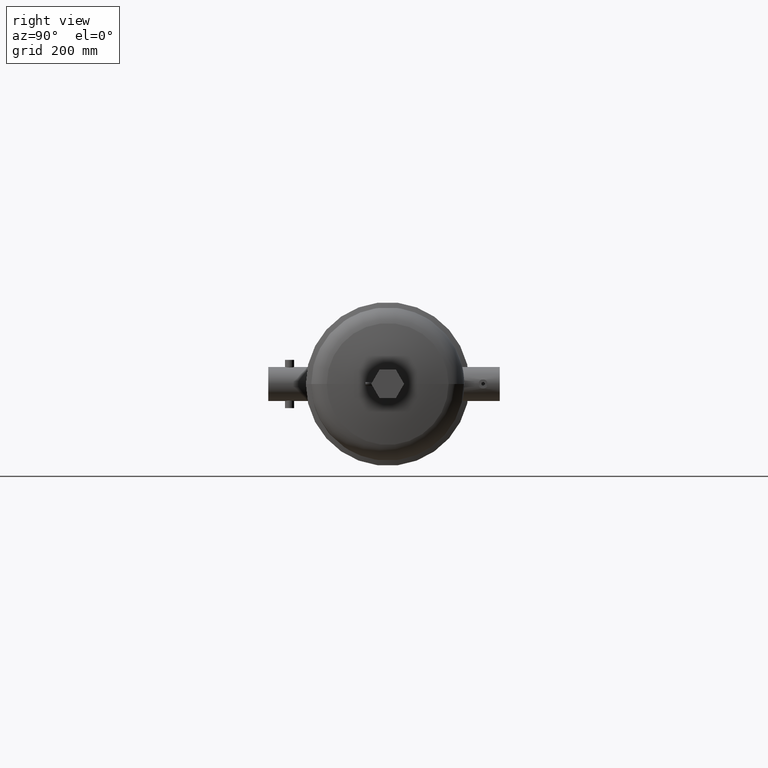
[diagram: clean part render]
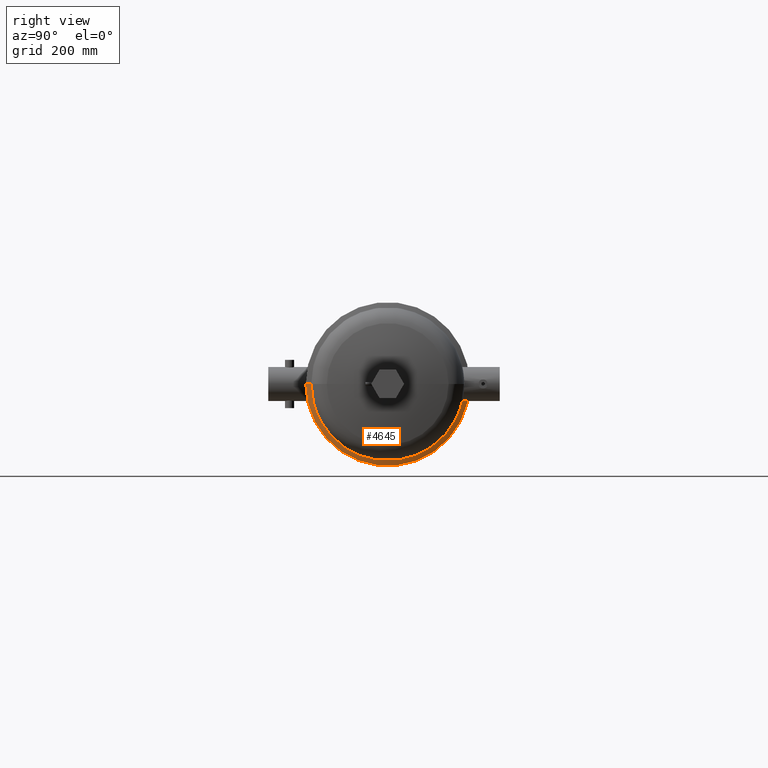
[diagram: same view with one face highlighted and labeled with its STEP entity id]
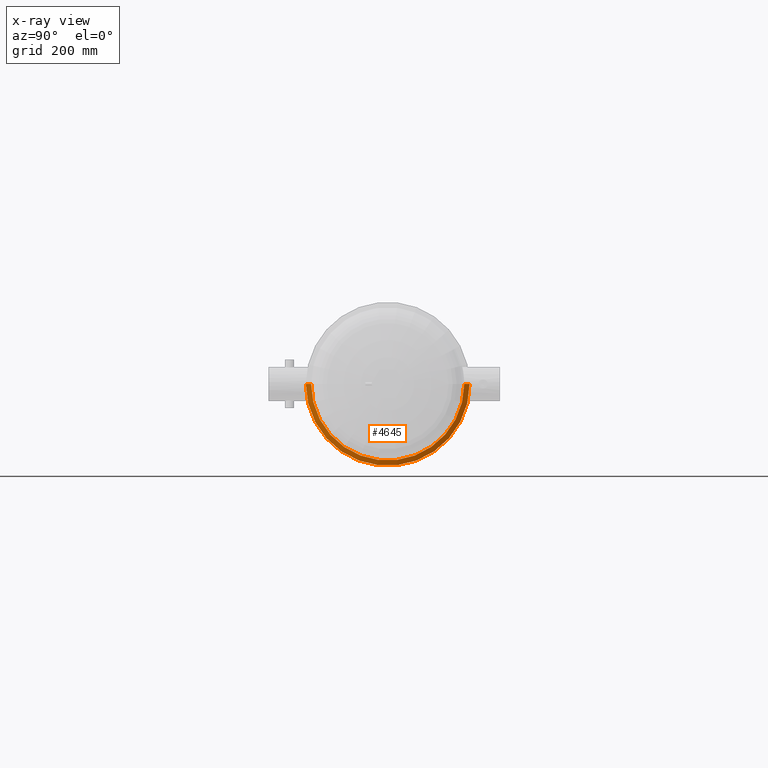
[diagram: x-ray of the same camera — body ghosted, the highlighted face saturated]
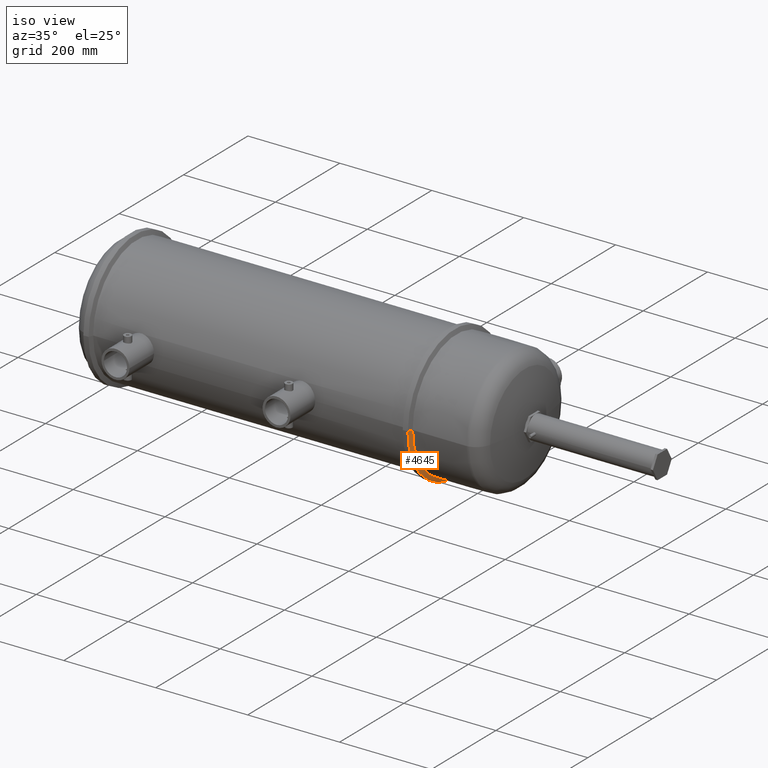
[diagram: same view with one face highlighted and labeled with its STEP entity id]
A machine part, right view. The second image highlights one B-rep face of the part: STEP entity #4645.
The next image is the same camera in x-ray: the body ghosted, the highlighted face saturated — about 0% of this face is hidden behind the body in this view.
A second angle (iso view) of the same face is appended — the face is thin or edge-on in the first view.
In plain terms, the highlighted conical surface has half-angle 70 deg.
Its self-contained STEP definition (entity closure, byte-faithful):
#64 = CARTESIAN_POINT ( 'NONE',  ( 29.68681614497546000, 0.003374638380548246200, 0.0000000000000000000 ) ) ;
#321 = CIRCLE ( 'NONE', #1969, 5.371620222854362600 ) ;
#485 = AXIS2_PLACEMENT_3D ( 'NONE', #5160, #4735, #3802 ) ;
#708 = VECTOR ( 'NONE', #3212, 39.37007874015748100 ) ;
#1075 = VECTOR ( 'NONE', #3594, 39.37007874015748100 ) ;
#1154 = CARTESIAN_POINT ( 'NONE',  ( 29.55032594122995300, 0.003374638380548246200, 0.0000000000000000000 ) ) ;
#1191 = ORIENTED_EDGE ( 'NONE', *, *, #5335, .F. ) ;
#1454 = VERTEX_POINT ( 'NONE', #4316 ) ;
#1674 = EDGE_LOOP ( 'NONE', ( #1191, #3539, #5844, #5121 ) ) ;
#1969 = AXIS2_PLACEMENT_3D ( 'NONE', #64, #4934, #5012 ) ;
#1996 = EDGE_CURVE ( 'NONE', #5625, #1454, #321, .T. ) ;
#2204 = VERTEX_POINT ( 'NONE', #2417 ) ;
#2274 = CIRCLE ( 'NONE', #485, 5.746619922619952800 ) ;
#2338 = CONICAL_SURFACE ( 'NONE', #5827, 5.746619922619952800, 1.221727002771735100 ) ;
#2417 = CARTESIAN_POINT ( 'NONE',  ( 29.55032594122995300, -5.743245284239404400, 0.0000000000000000000 ) ) ;
#2455 = EDGE_CURVE ( 'NONE', #1454, #2204, #3349, .T. ) ;
#2996 = DIRECTION ( 'NONE',  ( 0.0000000000000000000, -1.000000000000000000, 0.0000000000000000000 ) ) ;
#3078 = CARTESIAN_POINT ( 'NONE',  ( 29.55032594122995300, -5.743245284239404400, 0.0000000000000000000 ) ) ;
#3212 = DIRECTION ( 'NONE',  ( -0.3420234074627233100, 0.9396914327307597200, 1.150790105279915300E-016 ) ) ;
#3349 = LINE ( 'NONE', #3078, #1075 ) ;
#3515 = CARTESIAN_POINT ( 'NONE',  ( 29.55032594122995300, 5.749994561000501200, 7.037579694152935300E-016 ) ) ;
#3539 = ORIENTED_EDGE ( 'NONE', *, *, #1996, .T. ) ;
#3594 = DIRECTION ( 'NONE',  ( -0.3420234074627233100, -0.9396914327307597200, 0.0000000000000000000 ) ) ;
#3802 = DIRECTION ( 'NONE',  ( 0.0000000000000000000, -1.000000000000000000, 0.0000000000000000000 ) ) ;
#4110 = CARTESIAN_POINT ( 'NONE',  ( 29.55032594122995300, 5.749994561000501200, 7.037579694152935300E-016 ) ) ;
#4162 = LINE ( 'NONE', #4110, #708 ) ;
#4171 = FACE_OUTER_BOUND ( 'NONE', #1674, .T. ) ;
#4316 = CARTESIAN_POINT ( 'NONE',  ( 29.68681614497546000, -5.368245584473813300, 6.578347386283715700E-016 ) ) ;
#4558 = EDGE_CURVE ( 'NONE', #4636, #2204, #2274, .T. ) ;
#4636 = VERTEX_POINT ( 'NONE', #3515 ) ;
#4644 = CARTESIAN_POINT ( 'NONE',  ( 29.68681614497546000, 5.374994861234911000, 0.0000000000000000000 ) ) ;
#4645 = ADVANCED_FACE ( 'NONE', ( #4171 ), #2338, .T. ) ;
#4735 = DIRECTION ( 'NONE',  ( -1.000000000000000000, 1.127465836012422800E-020, -0.0000000000000000000 ) ) ;
#4934 = DIRECTION ( 'NONE',  ( -1.000000000000000000, 1.127465836012422800E-020, -0.0000000000000000000 ) ) ;
#5012 = DIRECTION ( 'NONE',  ( 0.0000000000000000000, -1.000000000000000000, 0.0000000000000000000 ) ) ;
#5121 = ORIENTED_EDGE ( 'NONE', *, *, #4558, .F. ) ;
#5160 = CARTESIAN_POINT ( 'NONE',  ( 29.55032594122995300, 0.003374638380548246200, 0.0000000000000000000 ) ) ;
#5335 = EDGE_CURVE ( 'NONE', #5625, #4636, #4162, .T. ) ;
#5625 = VERTEX_POINT ( 'NONE', #4644 ) ;
#5685 = DIRECTION ( 'NONE',  ( -1.000000000000000000, 1.127465836012422800E-020, -0.0000000000000000000 ) ) ;
#5827 = AXIS2_PLACEMENT_3D ( 'NONE', #1154, #5685, #2996 ) ;
#5844 = ORIENTED_EDGE ( 'NONE', *, *, #2455, .T. ) ;